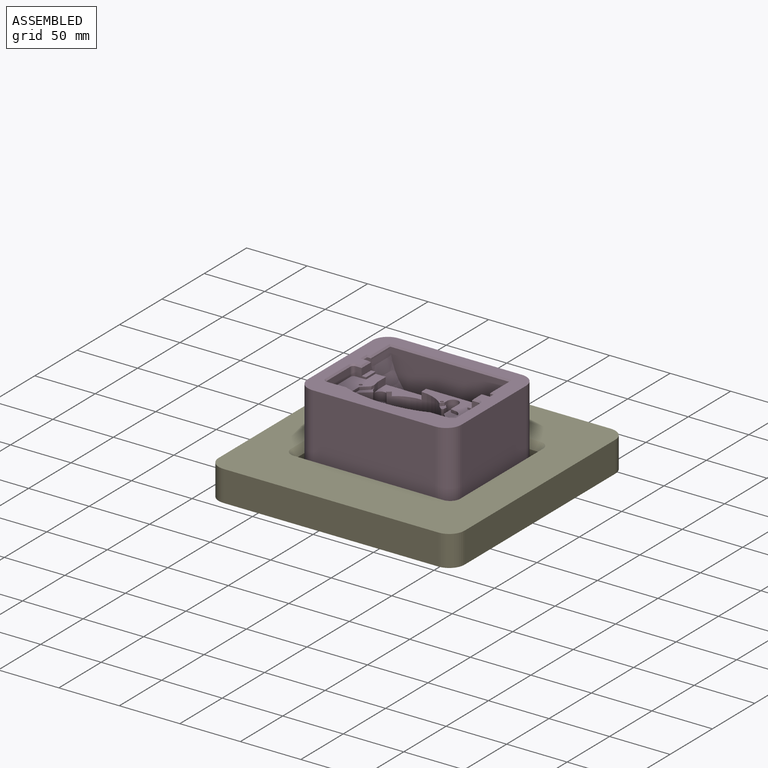
[diagram: assembled view]
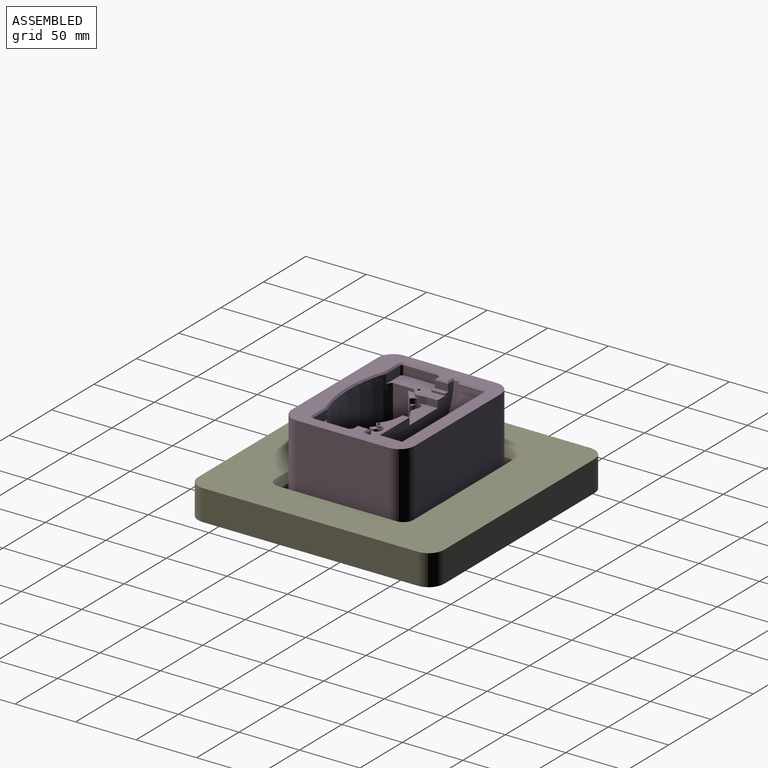
[diagram: assembled view, second angle]
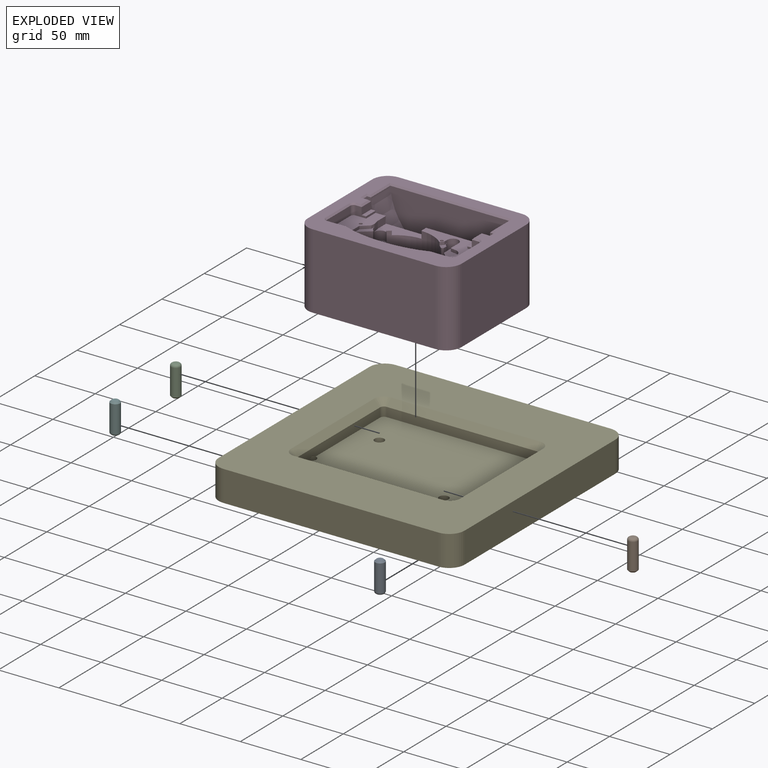
[diagram: exploded view]
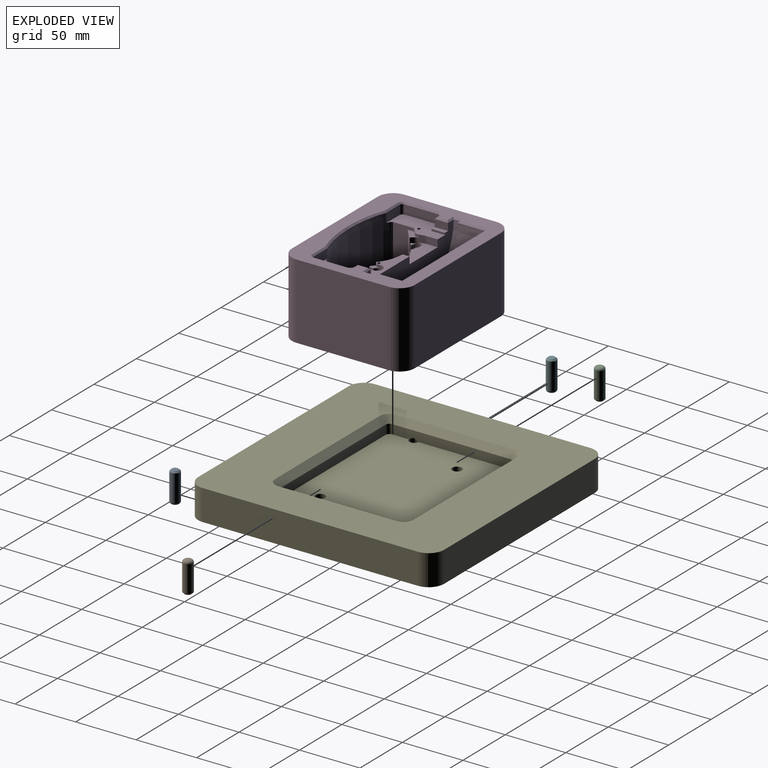
[diagram: exploded view, second angle]
ASSEMBLY  parts=6 mates=6
PART A: 5 faces, bbox 7.9x7.9x25.4 mm
  f0: cylinder r=3.97mm len=22.1mm, axis (0,0,-1), area 551mm2, adj f3,f4
  f1: plane 3.87x3.87mm, normal (0,0,1), area 11.8mm2, adj f4
  f2: plane 5.4x5.4mm, normal (0,0,-1), area 22.9mm2, adj f3
  f3: cone r=3.97mm half-angle=45deg, axis (0,0,1), area 37.6mm2, adj f0,f2
  f4: torus R=1.94mm, axis (0,0,1), area 64.8mm2, adj f0,f1
PART B: same geometry as A
PART C: same geometry as A
PART D: 112 faces, bbox 127.5x62.7x102.1 mm
  f0: plane 127x101.6mm, normal (0,-1,0), area 12486.6mm2, adj f1,f24,f73,f74,f105,f106,f107,f108
  f1: plane 76.2x62.24mm, normal (1,0,0), area 4742.6mm2, adj f0,f66,f108,f109
  f2: plane 53.01x43.63mm, normal (0,1,0), area 819.4mm2, adj f25,f26,f27,f28,f29,f30,f31,f32
  f3: extruded ~98.38x47.03mm, area 3457.8mm2, adj f69,f70,f82,f84,f86,f88,f90
  f4: plane 10.64x2.18mm, normal (0.78,0,-0.63), area 29.7mm2, adj f5,f6,f19,f20
  f5: cylinder r=0.51mm len=10.64mm, axis (0,1,0), area 8.4mm2, adj f4,f6,f20,f21
  f6: plane 10.62x10.28mm, normal (0,1,0), area 65.4mm2, adj f4,f5,f7,f19,f21
  f7: cylinder r=0.51mm len=10.64mm, axis (0,1,0), area 11.5mm2, adj f6,f17,f19,f21
  f8: plane 3.4x3.34mm, normal (0.29,0,-0.96), area 11.9mm2, adj f9,f17,f23,f111
  f9: cylinder r=0.51mm len=3.34mm, axis (0,1,0), area 4.2mm2, adj f8,f17,f19,f23
  f10: plane 2.54x2.54mm, normal (0,1,0), area 5.1mm2, adj f25
  f11: plane 22.09x12.15mm, normal (0,1,0), area 113.4mm2, adj f12,f16,f31,f32,f33,f34,f35,f36
  f12: plane 10.64x9.21mm, normal (-1,0,0), area 98mm2, adj f11,f13,f40,f76
  f13: plane 19.11x9.5mm, normal (0,1,0), area 105.8mm2, adj f12,f14,f16,f40,f75,f76
  f14: plane 10.64x3.02mm, normal (1,0,0), area 32.1mm2, adj f13,f15,f40,f75
  f15: plane 8.49x4.82mm, normal (0,1,0), area 18.6mm2, adj f14,f16,f40,f41,f42,f43,f75
  f16: plane 43x18.18mm, normal (-0.66,0,0.75), area 944.8mm2, adj f11,f13,f15,f22,f31,f43,f75,f76
  f17: plane 4.07x3.29mm, normal (0,1,0), area 7.3mm2, adj f7,f8,f9,f19,f21,f111
  f18: plane 2.54x2.54mm, normal (0,1,0), area 5.1mm2, adj f46
  f19: cylinder r=4.75mm len=10.64mm, axis (0,1,0), area 145.8mm2, adj f4,f6,f7,f9,f17,f20,f23,f48
  f20: plane 13.45x9.47mm, normal (0,1,0), area 45.1mm2, adj f4,f5,f19,f21,f49,f50,f51,f52
  f21: plane 43x19.11mm, normal (0.63,0,0.77), area 957.7mm2, adj f5,f6,f7,f17,f20,f22,f23,f43
  f22: plane 77.61x43.86mm, normal (0,1,0), area 2545.5mm2, adj f16,f21,f30,f31,f43,f52,f53,f54
  f23: plane 33.76x15.02mm, normal (0,1,0), area 313.7mm2, adj f8,f9,f19,f21,f43,f44,f45,f47
  f24: plane 76.2x62.24mm, normal (-1,0,0), area 4742.6mm2, adj f0,f66,f107,f110
  f25: cylinder r=1.27mm len=3.85mm, axis (0,1,0), area 30.7mm2, adj f2,f10
  f26: cylinder r=2.51mm len=7.58mm, axis (0,1,0), area 29.9mm2, adj f2,f27,f60,f99
  f27: plane 27.5x7.58mm, normal (-1,0,0), area 208.6mm2, adj f2,f26,f28,f97
  f28: cylinder r=2.51mm len=7.58mm, axis (0,1,0), area 29.9mm2, adj f2,f27,f29,f95
  f29: plane 15.72x7.58mm, normal (0,0,-1), area 119.2mm2, adj f2,f28,f54,f93
  f30: plane 45.5x0.52mm, normal (-0.94,0,-0.34), area 25.4mm2, adj f2,f22,f31,f54
  f31: plane 45.5x11.01mm, normal (-1,0,0), area 501mm2, adj f2,f11,f16,f22,f30,f32
  f32: cylinder r=0.51mm len=2.5mm, axis (0,-1,0), area 0.3mm2, adj f2,f11,f31,f33
  f33: plane 2.5x0.88mm, normal (-0.97,0,-0.25), area 2.3mm2, adj f2,f11,f32,f34
  f34: cylinder r=0.51mm len=2.5mm, axis (0,1,0), area 0.9mm2, adj f2,f11,f33,f35
  f35: cylinder r=5.88mm len=10.77mm, axis (0,1,0), area 37.6mm2, adj f2,f11,f34,f36
  f36: cylinder r=0.51mm len=2.5mm, axis (0,1,0), area 0.2mm2, adj f2,f11,f35,f37
  f37: plane 3.21x2.5mm, normal (-0.17,0,0.99), area 8.1mm2, adj f2,f11,f36,f38
  f38: cylinder r=0.51mm len=2.5mm, axis (0,-1,0), area 1.8mm2, adj f2,f11,f37,f39
  f39: plane 8.97x2.5mm, normal (-1,0,0), area 22.4mm2, adj f2,f11,f38,f40
  f40: cylinder r=4.75mm len=13.14mm, axis (0,1,0), area 305.5mm2, adj f2,f11,f12,f13,f14,f15,f39,f41
  f41: plane 3.12x2.5mm, normal (1,0,0), area 7.8mm2, adj f2,f15,f40,f42
  f42: plane 2.65x2.5mm, normal (0.76,0,0.65), area 8.8mm2, adj f2,f15,f41,f43
  f43: cylinder r=31.12mm len=45.5mm, axis (0,1,0), area 1868.5mm2, adj f2,f15,f16,f21,f22,f23,f42,f44
  f44: cylinder r=0.51mm len=5.84mm, axis (0,1,0), area 4.6mm2, adj f2,f23,f43,f45
  f45: plane 5.84x5.32mm, normal (-1,0,0), area 31.1mm2, adj f2,f23,f44,f72
  f46: cylinder r=1.27mm len=3.85mm, axis (0,1,0), area 30.7mm2, adj f18,f63
  f47: plane 9.62x5.84mm, normal (1,0,0), area 56.2mm2, adj f23,f48,f63,f72
  f48: plane 5.84x5.4mm, normal (0.98,0,-0.18), area 32.1mm2, adj f19,f23,f47,f49,f63
  f49: plane 2.87x2.5mm, normal (0.99,0,0.14), area 7.2mm2, adj f20,f48,f50,f63
  f50: cylinder r=0.51mm len=2.5mm, axis (0,-1,0), area 0.9mm2, adj f20,f49,f51,f63
  f51: plane 5.99x5.23mm, normal (0.66,0,0.75), area 19.9mm2, adj f20,f50,f52,f63
  f52: plane 45.5x17.32mm, normal (1,0,0), area 571.5mm2, adj f20,f21,f22,f51,f53,f63
  f53: plane 45.5x1.23mm, normal (0.82,0,-0.57), area 68.5mm2, adj f22,f52,f54,f63
  f54: extruded ~76.57x53.09mm, area 4139mm2, adj f2,f22,f29,f30,f53,f55,f63,f91
  f55: plane 15.72x7.58mm, normal (0,0,-1), area 119.2mm2, adj f54,f56,f63,f89
  f56: cylinder r=2.51mm len=7.58mm, axis (0,1,0), area 29.9mm2, adj f55,f57,f63,f87
  f57: plane 27.5x7.58mm, normal (1,0,0), area 208.6mm2, adj f56,f58,f63,f85
  f58: cylinder r=2.51mm len=7.58mm, axis (0,1,0), area 29.9mm2, adj f57,f59,f63,f83
  f59: plane 8.64x7.58mm, normal (0,0,1), area 43.7mm2, adj f58,f62,f63,f64,f67,f81
  f60: plane 8.64x7.58mm, normal (0,0,1), area 43.7mm2, adj f2,f26,f61,f65,f68,f100
  f61: plane 11.11x1.6mm, normal (-1,0,0), area 17.8mm2, adj f2,f60,f68,f72
  f62: plane 11.11x1.6mm, normal (1,0,0), area 17.8mm2, adj f59,f63,f67,f72
  f63: plane 43.63x20.76mm, normal (0,1,0), area 614.1mm2, adj f46,f47,f48,f49,f50,f51,f52,f53
  f64: plane 11.11x5.98mm, normal (1,0,0), area 66.5mm2, adj f59,f67,f72,f79
  f65: plane 11.11x5.98mm, normal (-1,0,0), area 66.5mm2, adj f60,f68,f72,f98
  f66: plane 127.45x102.05mm, normal (0,1,0), area 4751.3mm2, adj f1,f24,f73,f74,f77,f78,f79,f80
  f67: plane 11.11x3.64mm, normal (0,1,0), area 40.5mm2, adj f59,f62,f64,f72
  f68: plane 11.11x3.64mm, normal (0,1,0), area 40.5mm2, adj f60,f61,f65,f72
  f69: plane 98.38x46.98mm, normal (0,0,1), area 3588.5mm2, adj f3,f86
  f70: plane 104.51x50.01mm, normal (0,0,1), area 468.6mm2, adj f3,f71,f82,f90
  f71: cylinder r=52.31mm len=104.52mm, axis (0,0,-1), area 820.8mm2, adj f70,f72,f78,f80,f82,f90,f92,f94
  f72: plane 104.51x50.01mm, normal (0,0,-1), area 3184.2mm2, adj f2,f23,f45,f47,f61,f62,f63,f64
  f73: plane 101.6x62.24mm, normal (0,0,-1), area 6323.3mm2, adj f0,f66,f109,f110
  f74: plane 101.6x62.24mm, normal (0,0,1), area 6323.3mm2, adj f0,f66,f107,f108
  f75: cylinder r=1.27mm len=10.64mm, axis (0,1,0), area 31mm2, adj f13,f14,f15,f16
  f76: cylinder r=1.27mm len=10.64mm, axis (0,-1,0), area 11.4mm2, adj f11,f12,f13,f16
  f77: plane 3.72x1.27mm, normal (0,0.71,-0.71), area 5.5mm2, adj f66,f72,f78,f79
  f78: plane 4.3x1.27mm, normal (0,0.71,-0.71), area 6.5mm2, adj f66,f71,f72,f77,f80
  f79: plane 11.11x1.27mm, normal (0.71,0.71,0), area 17.7mm2, adj f64,f66,f77,f81
  f80: plane 7.68x1.27mm, normal (0.69,0.72,0), area 11.4mm2, adj f66,f71,f78,f82
  f81: plane 4.99x1.27mm, normal (0,0.71,0.71), area 7.8mm2, adj f59,f66,f79,f83
  f82: plane 4.34x1.27mm, normal (0,0.71,0.71), area 5.5mm2, adj f3,f66,f70,f71,f80,f84
  f83: cone r=3.78mm half-angle=45deg, axis (0,1,0), area 8.9mm2, adj f58,f66,f81,f85
  f84: plane 24.09x1.27mm, normal (0.69,0.72,0), area 40.2mm2, adj f3,f66,f82,f86
  f85: plane 27.5x1.27mm, normal (0.71,0.71,0), area 49.4mm2, adj f57,f66,f83,f87
  f86: plane 100.92x1.27mm, normal (0,0.71,0.71), area 178.9mm2, adj f3,f66,f69,f84,f88
  f87: cone r=3.78mm half-angle=45deg, axis (0,1,0), area 8.9mm2, adj f56,f66,f85,f89
  f88: plane 24.09x1.27mm, normal (-0.69,0.72,0), area 40.2mm2, adj f3,f66,f86,f90
  f89: plane 15.72x1.27mm, normal (0,0.71,-0.71), area 28mm2, adj f55,f66,f87,f91
  f90: plane 4.34x1.27mm, normal (0,0.71,0.71), area 5.5mm2, adj f3,f66,f70,f71,f88,f92
  f91: bspline ~76.99x8.83mm, area 128mm2, adj f54,f66,f89,f93
  f92: plane 7.68x1.27mm, normal (-0.69,0.72,0), area 11.4mm2, adj f66,f71,f90,f94
  f93: plane 15.72x1.27mm, normal (0,0.71,-0.71), area 28mm2, adj f29,f66,f91,f95
  f94: plane 4.3x1.27mm, normal (0,0.71,-0.71), area 6.5mm2, adj f66,f71,f72,f92,f96
  f95: cone r=3.78mm half-angle=45deg, axis (0,1,0), area 8.9mm2, adj f28,f66,f93,f97
  f96: plane 3.72x1.27mm, normal (0,0.71,-0.71), area 5.5mm2, adj f66,f72,f94,f98
  f97: plane 27.5x1.27mm, normal (-0.71,0.71,0), area 49.4mm2, adj f27,f66,f95,f99
  f98: plane 11.11x1.27mm, normal (-0.71,0.71,0), area 17.7mm2, adj f65,f66,f96,f100
  f99: cone r=3.78mm half-angle=45deg, axis (0,1,0), area 8.9mm2, adj f26,f66,f97,f100
  f100: plane 4.99x1.27mm, normal (0,0.71,0.71), area 7.8mm2, adj f60,f66,f98,f99
  f101: cylinder r=4.11mm len=13.97mm, axis (0,-1,0), area 361.2mm2, adj f102,f106
  f102: cone r=0mm half-angle=59deg, axis (0,-1,0), area 62.1mm2, adj f101
  f103: cylinder r=4.11mm len=13.97mm, axis (0,-1,0), area 361.2mm2, adj f104,f105
  f104: cone r=0mm half-angle=59deg, axis (0,-1,0), area 62.1mm2, adj f103
  f105: cone r=4.11mm half-angle=26.6deg, axis (0,-1,0), area 192.2mm2, adj f0,f103
  f106: cone r=4.11mm half-angle=26.6deg, axis (0,-1,0), area 192.2mm2, adj f0,f101
  f107: cylinder r=12.7mm len=62.24mm, axis (0,1,0), area 1241.6mm2, adj f0,f24,f66,f74
  f108: cylinder r=12.7mm len=62.24mm, axis (0,1,0), area 1241.6mm2, adj f0,f1,f66,f74
  f109: cylinder r=12.7mm len=62.24mm, axis (0,-1,0), area 1241.6mm2, adj f0,f1,f66,f73
  f110: cylinder r=12.7mm len=62.24mm, axis (0,-1,0), area 1241.6mm2, adj f0,f24,f66,f73
  f111: cylinder r=0.25mm len=3.34mm, axis (0,1,0), area 1mm2, adj f8,f17,f21,f23
PART E: 33 faces, bbox 203.2x203.2x25.4 mm
  f0: plane 97.79x7.62mm, normal (1,0,0), area 736.6mm2, adj f10,f11,f14,f18,f27
  f1: plane 97.79x7.62mm, normal (-1,0,0), area 736.6mm2, adj f10,f12,f13,f19,f26
  f2: plane 177.8x25.4mm, normal (-1,0,0), area 4516.1mm2, adj f6,f7,f29,f32
  f3: plane 177.8x25.4mm, normal (0,-1,0), area 4516.1mm2, adj f6,f7,f29,f30
  f4: plane 177.8x25.4mm, normal (1,0,0), area 4516.1mm2, adj f6,f7,f30,f31
  f5: plane 177.8x25.4mm, normal (0,1,0), area 4516.1mm2, adj f6,f7,f31,f32
  f6: plane 203.2x203.2mm, normal (0,0,1), area 25242.6mm2, adj f2,f3,f4,f5,f15,f16,f17,f18
  f7: plane 203.2x203.2mm, normal (0,0,-1), area 40957mm2, adj f2,f3,f4,f5,f23,f24,f25,f28
  f8: plane 123.19x7.62mm, normal (0,1,0), area 938.7mm2, adj f10,f11,f12,f22
  f9: plane 123.19x7.62mm, normal (0,-1,0), area 938.7mm2, adj f10,f13,f14,f15
  f10: plane 129.54x104.14mm, normal (0,0,1), area 13345.5mm2, adj f0,f1,f8,f9,f11,f12,f13,f14
  f11: cylinder r=3.17mm len=7.62mm, axis (0,0,-1), area 38mm2, adj f0,f8,f10,f20
  f12: cylinder r=3.17mm len=7.62mm, axis (0,0,1), area 38mm2, adj f1,f8,f10,f21
  f13: cylinder r=3.17mm len=7.62mm, axis (0,0,-1), area 38mm2, adj f1,f9,f10,f17
  f14: cylinder r=3.17mm len=7.62mm, axis (0,0,1), area 38mm2, adj f0,f9,f10,f16
  f15: plane 123.19x5.08mm, normal (0,-0.71,0.71), area 885mm2, adj f6,f9,f16,f17
  f16: cone r=8.26mm half-angle=45deg, axis (0,0,1), area 64.5mm2, adj f6,f14,f15,f18
  f17: cone r=8.26mm half-angle=45deg, axis (0,0,1), area 64.5mm2, adj f6,f13,f15,f19
  f18: plane 97.79x5.08mm, normal (0.71,0,0.71), area 702.5mm2, adj f0,f6,f16,f20
  f19: plane 97.79x5.08mm, normal (-0.71,0,0.71), area 702.5mm2, adj f1,f6,f17,f21
  f20: cone r=8.26mm half-angle=45deg, axis (0,0,1), area 64.5mm2, adj f6,f11,f18,f22
  f21: cone r=8.26mm half-angle=45deg, axis (0,0,1), area 64.5mm2, adj f6,f12,f19,f22
  f22: plane 123.19x5.08mm, normal (0,0.71,0.71), area 885mm2, adj f6,f8,f20,f21
  f23: cylinder r=3.94mm len=12.7mm, axis (0,0,1), area 314.2mm2, adj f7,f10
  f24: cylinder r=3.94mm len=12.7mm, axis (0,0,1), area 314.2mm2, adj f7,f10
  f25: cylinder r=3.94mm len=12.7mm, axis (0,0,-1), area 314.2mm2, adj f7,f10,f26
  f26: cone r=0mm half-angle=59deg, axis (0,0,-1), area 34.2mm2, adj f1,f25
  f27: cone r=0mm half-angle=59deg, axis (0,0,-1), area 34.2mm2, adj f0,f28
  f28: cylinder r=3.94mm len=12.7mm, axis (0,0,-1), area 314.2mm2, adj f7,f10,f27
  f29: cylinder r=12.7mm len=25.4mm, axis (0,0,-1), area 506.7mm2, adj f2,f3,f6,f7
  f30: cylinder r=12.7mm len=25.4mm, axis (0,0,1), area 506.7mm2, adj f3,f4,f6,f7
  f31: cylinder r=12.7mm len=25.4mm, axis (0,0,-1), area 506.7mm2, adj f4,f5,f6,f7
  f32: cylinder r=12.7mm len=25.4mm, axis (0,0,1), area 506.7mm2, adj f2,f5,f6,f7
PART F: same geometry as A
PLACE A rot(axis=(1,0,0),180deg) t=(80.09,61.47,-9.24)mm
PLACE B t=(59.13,-1.4,-21.94)mm
PLACE C t=(-29.77,49.4,-21.94)mm
PLACE D rot(axis=(1,0,0),90deg) t=(14.68,33.3,-9.24)mm
PLACE E t=(14.68,30.35,-21.94)mm fixed
PLACE F rot(axis=(0.71,0.71,0),180deg) t=(-50.72,-0.76,-9.24)mm
MATE planar D.f0 <-> E.f10  axis (0,0,-1) through (14.68,30.49,-9.24)mm
MATE slider A.f0 <-> E.f25  axis (0,0,1) through (80.09,61.47,-9.24)mm
MATE slider F.f0 <-> E.f27  axis (0,0,1) through (-50.72,-0.76,-9.24)mm
MATE slider C.f0 <-> E.f23  axis (0,0,1) through (-29.77,49.4,-21.31)mm
MATE slider B.f0 <-> E.f24  axis (0,0,-1) through (59.13,-1.4,-21.94)mm
MATE slider D.f103 <-> E.f24  axis (0,0,-1) through (59.13,-1.4,2.82)mm
